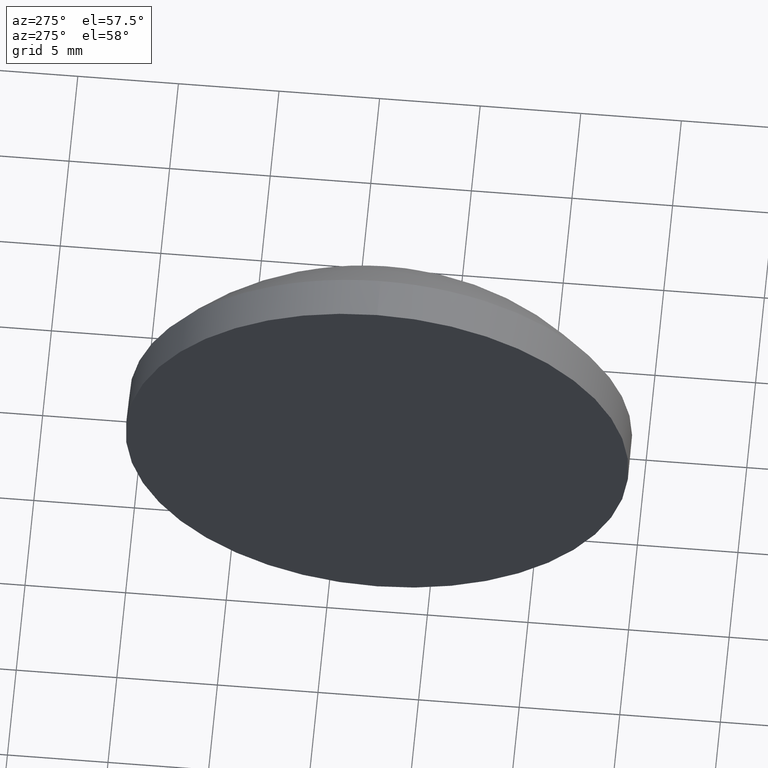
[diagram: clean part render]
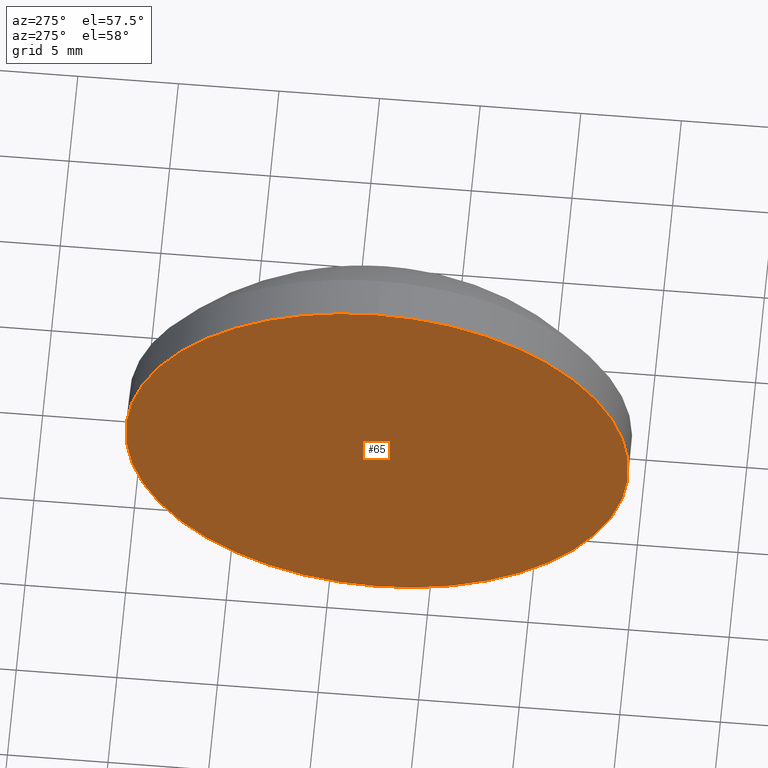
[diagram: same view with one face highlighted and labeled with its STEP entity id]
A machine part, auxiliary view. The second image highlights one B-rep face of the part: STEP entity #65.
In plain terms, the highlighted planar face has unit normal (1, 0, 0).
Its self-contained STEP definition (entity closure, byte-faithful):
#3 = DIRECTION ( 'NONE',  ( -1.000000000000000000, -0.0000000000000000000, -0.0000000000000000000 ) ) ;
#12 = VERTEX_POINT ( 'NONE', #152 ) ;
#15 = ORIENTED_EDGE ( 'NONE', *, *, #47, .T. ) ;
#24 = AXIS2_PLACEMENT_3D ( 'NONE', #56, #106, #73 ) ;
#31 = PLANE ( 'NONE',  #115 ) ;
#37 = FACE_OUTER_BOUND ( 'NONE', #64, .T. ) ;
#38 = CARTESIAN_POINT ( 'NONE',  ( 541.1151502343923300, 132.5985296569771200, 12.49999999999998400 ) ) ;
#47 = EDGE_CURVE ( 'NONE', #153, #12, #85, .T. ) ;
#50 = DIRECTION ( 'NONE',  ( 1.000000000000000000, 0.0000000000000000000, 0.0000000000000000000 ) ) ;
#56 = CARTESIAN_POINT ( 'NONE',  ( 541.1151502343923300, 132.5985296569771200, 0.0000000000000000000 ) ) ;
#64 = EDGE_LOOP ( 'NONE', ( #15, #151 ) ) ;
#65 = ADVANCED_FACE ( 'NONE', ( #37 ), #31, .F. ) ;
#66 = DIRECTION ( 'NONE',  ( 0.0000000000000000000, 0.0000000000000000000, 1.000000000000000000 ) ) ;
#67 = DIRECTION ( 'NONE',  ( 0.0000000000000000000, 0.0000000000000000000, -1.000000000000000000 ) ) ;
#73 = DIRECTION ( 'NONE',  ( 0.0000000000000000000, 0.0000000000000000000, 1.000000000000000000 ) ) ;
#77 = EDGE_CURVE ( 'NONE', #12, #153, #127, .T. ) ;
#81 = CARTESIAN_POINT ( 'NONE',  ( 541.1151502343923300, 132.5985296569771200, 0.0000000000000000000 ) ) ;
#85 = CIRCLE ( 'NONE', #174, 12.49999999999998400 ) ;
#106 = DIRECTION ( 'NONE',  ( -1.000000000000000000, -0.0000000000000000000, -0.0000000000000000000 ) ) ;
#115 = AXIS2_PLACEMENT_3D ( 'NONE', #81, #50, #67 ) ;
#127 = CIRCLE ( 'NONE', #24, 12.49999999999998400 ) ;
#129 = CARTESIAN_POINT ( 'NONE',  ( 541.1151502343923300, 132.5985296569771200, 0.0000000000000000000 ) ) ;
#151 = ORIENTED_EDGE ( 'NONE', *, *, #77, .T. ) ;
#152 = CARTESIAN_POINT ( 'NONE',  ( 541.1151502343923300, 132.5985296569771200, -12.49999999999998400 ) ) ;
#153 = VERTEX_POINT ( 'NONE', #38 ) ;
#174 = AXIS2_PLACEMENT_3D ( 'NONE', #129, #3, #66 ) ;